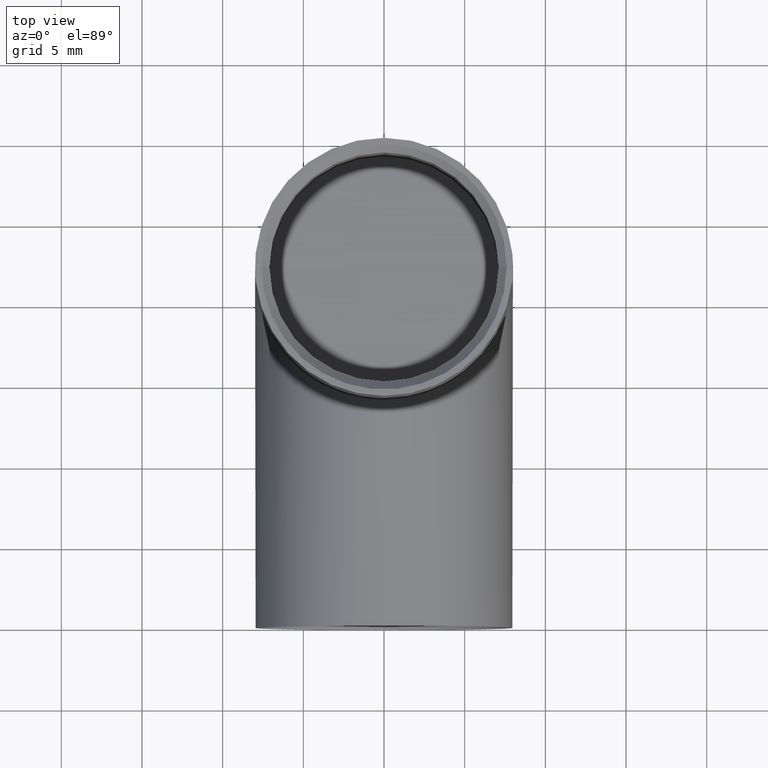
[diagram: clean part render]
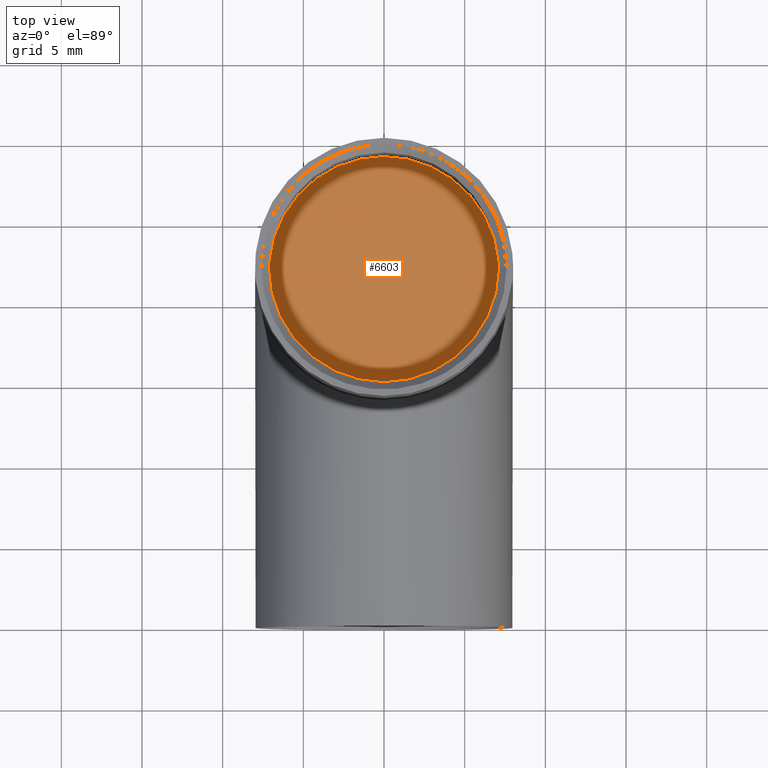
[diagram: same view with one face highlighted and labeled with its STEP entity id]
A machine part, top view. The second image highlights one B-rep face of the part: STEP entity #6603.
In plain terms, the highlighted planar face has unit normal (0, -0, 1).
Its self-contained STEP definition (entity closure, byte-faithful):
#643 = DIRECTION ( 'NONE',  ( -0.000000000000000000, 2.220446049250313081E-16, -1.000000000000000000 ) ) ;
#899 = ORIENTED_EDGE ( 'NONE', *, *, #4830, .F. ) ;
#951 = ORIENTED_EDGE ( 'NONE', *, *, #10230, .F. ) ;
#976 = AXIS2_PLACEMENT_3D ( 'NONE', #7160, #8107, #2439 ) ;
#1340 = VERTEX_POINT ( 'NONE', #12108 ) ;
#2020 = ORIENTED_EDGE ( 'NONE', *, *, #8077, .F. ) ;
#2439 = DIRECTION ( 'NONE',  ( 0.000000000000000000, 1.000000000000000000, 2.443272501375784959E-16 ) ) ;
#3547 = VERTEX_POINT ( 'NONE', #11223 ) ;
#4443 = AXIS2_PLACEMENT_3D ( 'NONE', #6324, #643, #10155 ) ;
#4800 = FACE_OUTER_BOUND ( 'NONE', #10336, .T. ) ;
#4830 = EDGE_CURVE ( 'NONE', #6366, #1340, #12274, .T. ) ;
#5322 = CARTESIAN_POINT ( 'NONE',  ( 0.000000000000000000, 15.00000000000000000, 6.999999999999987566 ) ) ;
#6115 = DIRECTION ( 'NONE',  ( 0.000000000000000000, 1.000000000000000000, 2.220446049250313081E-16 ) ) ;
#6119 = CIRCLE ( 'NONE', #4443, 7.099999999999998757 ) ;
#6324 = CARTESIAN_POINT ( 'NONE',  ( 0.000000000000000000, 21.99999999999998934, 6.999999999999988454 ) ) ;
#6366 = VERTEX_POINT ( 'NONE', #9106 ) ;
#6603 = ADVANCED_FACE ( 'NONE', ( #4800 ), #10042, .T. ) ;
#7160 = CARTESIAN_POINT ( 'NONE',  ( 0.000000000000000000, 21.99999999999998934, 6.999999999999988454 ) ) ;
#8077 = EDGE_CURVE ( 'NONE', #1340, #3547, #6119, .T. ) ;
#8087 = AXIS2_PLACEMENT_3D ( 'NONE', #10901, #9047, #6115 ) ;
#8107 = DIRECTION ( 'NONE',  ( -0.000000000000000000, 2.220446049250313081E-16, -1.000000000000000000 ) ) ;
#9047 = DIRECTION ( 'NONE',  ( 0.000000000000000000, -2.220446049250313081E-16, 1.000000000000000000 ) ) ;
#9106 = CARTESIAN_POINT ( 'NONE',  ( -1.187434208703863847, 15.00000000000000000, 6.999999999999987566 ) ) ;
#9517 = VECTOR ( 'NONE', #10185, 1000.000000000000000 ) ;
#10042 = PLANE ( 'NONE',  #8087 ) ;
#10155 = DIRECTION ( 'NONE',  ( 0.000000000000000000, 1.000000000000000000, 2.443272501375784959E-16 ) ) ;
#10185 = DIRECTION ( 'NONE',  ( -1.000000000000000000, 0.000000000000000000, 0.000000000000000000 ) ) ;
#10230 = EDGE_CURVE ( 'NONE', #3547, #6366, #11328, .T. ) ;
#10336 = EDGE_LOOP ( 'NONE', ( #899, #951, #2020 ) ) ;
#10901 = CARTESIAN_POINT ( 'NONE',  ( 0.000000000000000000, 21.99999999999998934, 6.999999999999988454 ) ) ;
#11223 = CARTESIAN_POINT ( 'NONE',  ( 1.187434208703855187, 15.00000000000000000, 6.999999999999987566 ) ) ;
#11328 = LINE ( 'NONE', #5322, #9517 ) ;
#12108 = CARTESIAN_POINT ( 'NONE',  ( 8.694992273946209718E-16, 29.09999999999998721, 6.999999999999990230 ) ) ;
#12274 = CIRCLE ( 'NONE', #976, 7.099999999999998757 ) ;